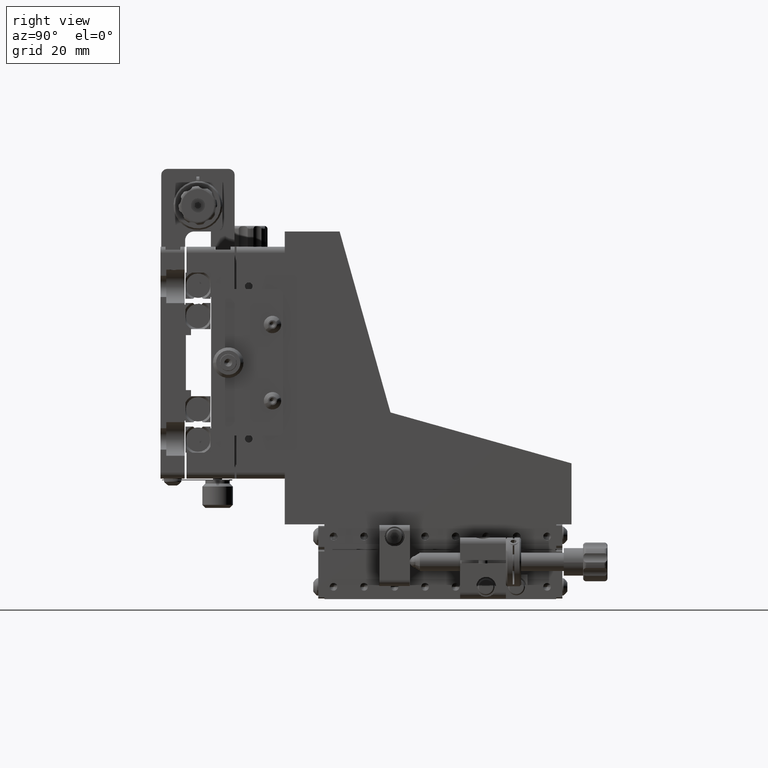
[diagram: clean part render]
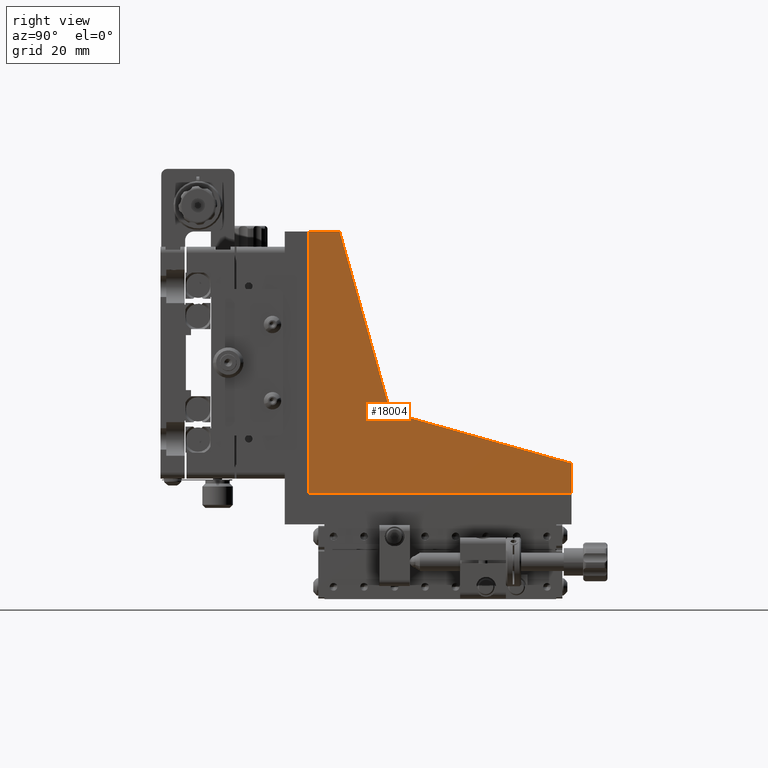
[diagram: same view with one face highlighted and labeled with its STEP entity id]
A machine part, right view. The second image highlights one B-rep face of the part: STEP entity #18004.
In plain terms, the highlighted planar face has unit normal (1, 0, -0).
Its self-contained STEP definition (entity closure, byte-faithful):
#1569 = EDGE_CURVE ( 'NONE', #77316, #106050, #77503, .T. ) ;
#4751 = EDGE_LOOP ( 'NONE', ( #15550, #35198, #120001, #108862, #39287, #108953 ) ) ;
#10804 = LINE ( 'NONE', #100593, #87714 ) ;
#11059 = VECTOR ( 'NONE', #43398, 1000.000000000000000 ) ;
#12155 = EDGE_CURVE ( 'NONE', #25935, #44855, #14668, .T. ) ;
#14668 = LINE ( 'NONE', #38169, #127796 ) ;
#15493 = DIRECTION ( 'NONE',  ( 2.910392048004318800E-017, -0.9626917464264784800, 0.2706004459758642500 ) ) ;
#15550 = ORIENTED_EDGE ( 'NONE', *, *, #34518, .T. ) ;
#17930 = VECTOR ( 'NONE', #84721, 1000.000000000000000 ) ;
#18004 = ADVANCED_FACE ( 'NONE', ( #103065 ), #125259, .T. ) ;
#23274 = CARTESIAN_POINT ( 'NONE',  ( 44.61747346207666700, 49.79002752014502400, 176.2309604384502100 ) ) ;
#25935 = VERTEX_POINT ( 'NONE', #83193 ) ;
#31108 = DIRECTION ( 'NONE',  ( -1.075528554999920600E-016, 8.105509838988622200E-023, -1.000000000000000000 ) ) ;
#34518 = EDGE_CURVE ( 'NONE', #56647, #77316, #10804, .T. ) ;
#35198 = ORIENTED_EDGE ( 'NONE', *, *, #1569, .T. ) ;
#36630 = CARTESIAN_POINT ( 'NONE',  ( 44.61747346207671000, 49.79002752014502400, 90.23096043845019700 ) ) ;
#37756 = EDGE_CURVE ( 'NONE', #106050, #118876, #86507, .T. ) ;
#38169 = CARTESIAN_POINT ( 'NONE',  ( 44.61747346207668100, 59.79002752014513100, 176.2309604384502100 ) ) ;
#39287 = ORIENTED_EDGE ( 'NONE', *, *, #12155, .T. ) ;
#39593 = CARTESIAN_POINT ( 'NONE',  ( 44.61747346207666700, 49.79002752014502400, 176.2309604384502100 ) ) ;
#40202 = CARTESIAN_POINT ( 'NONE',  ( 44.61747346207665300, 135.7900275201450900, 100.2309604384503000 ) ) ;
#43398 = DIRECTION ( 'NONE',  ( 7.252141503624061300E-023, -1.000000000000000000, -8.107382460232497800E-023 ) ) ;
#44185 = VECTOR ( 'NONE', #15493, 1000.000000000000100 ) ;
#44855 = VERTEX_POINT ( 'NONE', #50481 ) ;
#50481 = CARTESIAN_POINT ( 'NONE',  ( 44.61747346207668100, 59.79002752014513100, 176.2309604384502100 ) ) ;
#54449 = DIRECTION ( 'NONE',  ( 1.000000000000000000, 7.252141503624062500E-023, -1.075528555211320000E-016 ) ) ;
#56647 = VERTEX_POINT ( 'NONE', #39593 ) ;
#57225 = CARTESIAN_POINT ( 'NONE',  ( 44.61747346207665300, 135.7900275201450900, 100.2309604384503000 ) ) ;
#72384 = LINE ( 'NONE', #106769, #44185 ) ;
#76932 = LINE ( 'NONE', #23274, #11059 ) ;
#77316 = VERTEX_POINT ( 'NONE', #36630 ) ;
#77503 = LINE ( 'NONE', #95708, #17930 ) ;
#77671 = DIRECTION ( 'NONE',  ( 1.035402659187692300E-016, -0.2706004459758645200, 0.9626917464264784800 ) ) ;
#83193 = CARTESIAN_POINT ( 'NONE',  ( 44.61747346207665300, 76.46542206237904800, 116.9063549806842400 ) ) ;
#84721 = DIRECTION ( 'NONE',  ( -7.252141503624061300E-023, 1.000000000000000000, 8.107382460232497800E-023 ) ) ;
#86507 = LINE ( 'NONE', #57225, #99148 ) ;
#87714 = VECTOR ( 'NONE', #31108, 1000.000000000000000 ) ;
#91470 = EDGE_CURVE ( 'NONE', #118876, #25935, #72384, .T. ) ;
#94526 = DIRECTION ( 'NONE',  ( -7.252141503624061300E-023, 1.000000000000000000, 8.107382460232497800E-023 ) ) ;
#95708 = CARTESIAN_POINT ( 'NONE',  ( 44.61747346207671000, 49.79002752014502400, 90.23096043845019700 ) ) ;
#99148 = VECTOR ( 'NONE', #110419, 1000.000000000000000 ) ;
#100593 = CARTESIAN_POINT ( 'NONE',  ( 44.61747346207666700, 49.79002752014502400, 176.2309604384502100 ) ) ;
#103065 = FACE_OUTER_BOUND ( 'NONE', #4751, .T. ) ;
#106050 = VERTEX_POINT ( 'NONE', #122844 ) ;
#106769 = CARTESIAN_POINT ( 'NONE',  ( 44.61747346207665300, 76.46542206237904800, 116.9063549806842400 ) ) ;
#108862 = ORIENTED_EDGE ( 'NONE', *, *, #91470, .T. ) ;
#108953 = ORIENTED_EDGE ( 'NONE', *, *, #122921, .T. ) ;
#110419 = DIRECTION ( 'NONE',  ( 1.075528554999920600E-016, -8.105509838988622200E-023, 1.000000000000000000 ) ) ;
#114728 = CARTESIAN_POINT ( 'NONE',  ( 44.61747346207671000, 49.79002752014502400, 90.23096043845019700 ) ) ;
#118876 = VERTEX_POINT ( 'NONE', #40202 ) ;
#120001 = ORIENTED_EDGE ( 'NONE', *, *, #37756, .T. ) ;
#122844 = CARTESIAN_POINT ( 'NONE',  ( 44.61747346207670300, 135.7900275201450900, 90.23096043845021100 ) ) ;
#122921 = EDGE_CURVE ( 'NONE', #44855, #56647, #76932, .T. ) ;
#125259 = PLANE ( 'NONE',  #130289 ) ;
#127796 = VECTOR ( 'NONE', #77671, 1000.000000000000000 ) ;
#130289 = AXIS2_PLACEMENT_3D ( 'NONE', #114728, #54449, #94526 ) ;